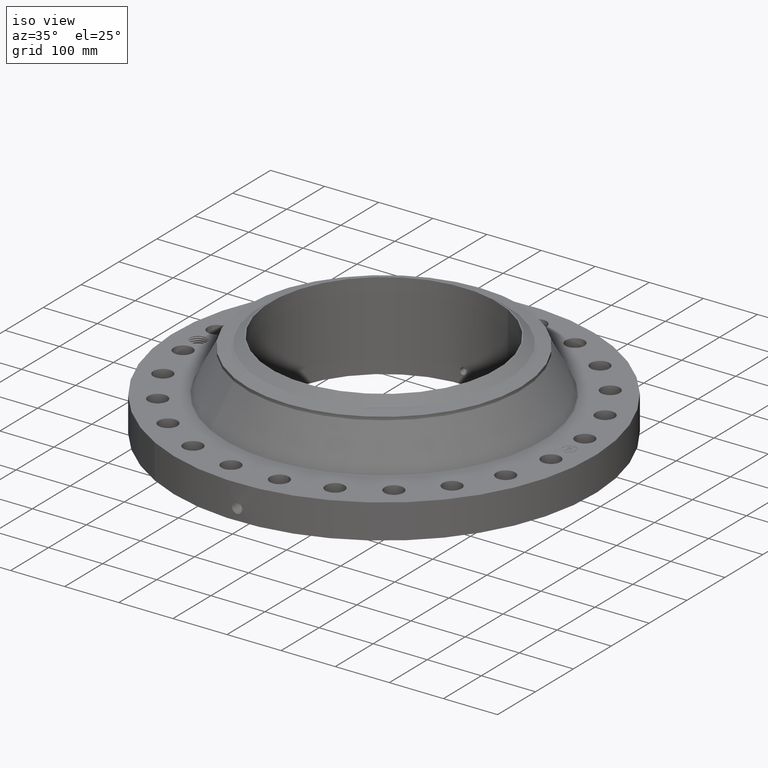
[diagram: clean part render]
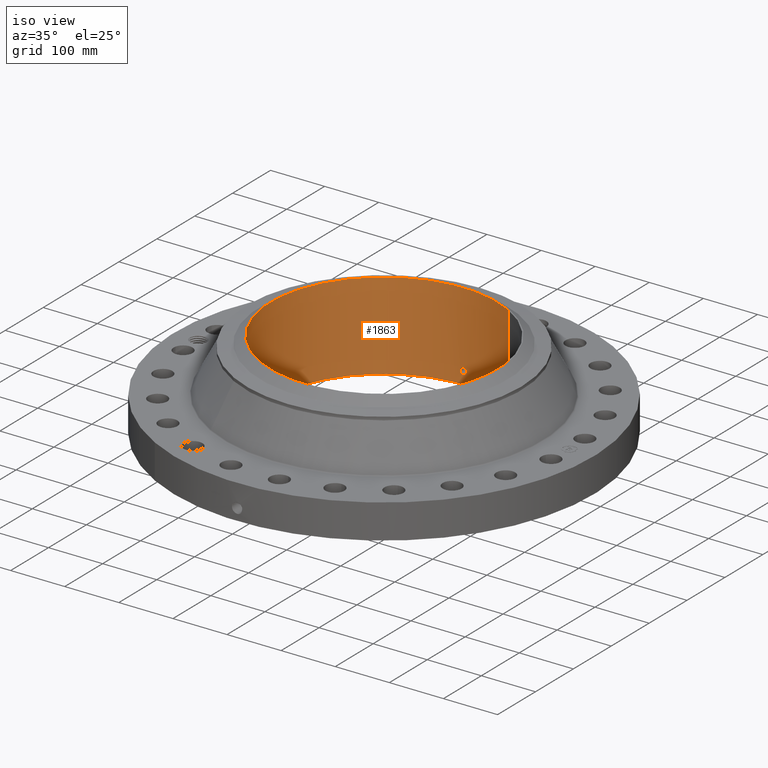
[diagram: same view with one face highlighted and labeled with its STEP entity id]
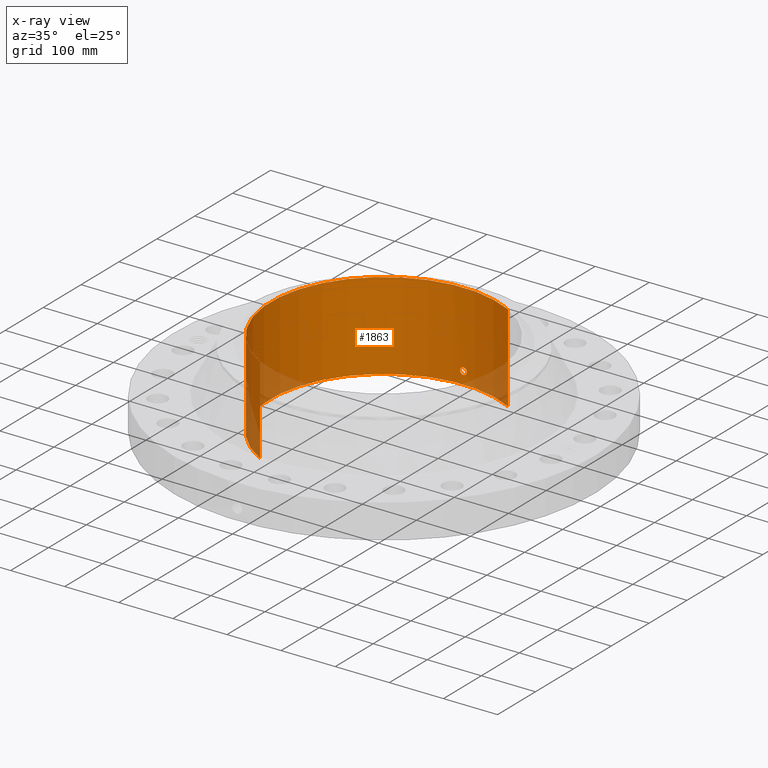
[diagram: x-ray of the same camera — body ghosted, the highlighted face saturated]
A machine part, iso view. The second image highlights one B-rep face of the part: STEP entity #1863.
The next image is the same camera in x-ray: the body ghosted, the highlighted face saturated — about 9% of this face is hidden behind the body in this view.
In plain terms, the highlighted cylindrical surface (partial cylindrical patch) has radius 209.55 mm, axis along (0, 0, -1).
Its self-contained STEP definition (entity closure, byte-faithful):
#267=AXIS2_PLACEMENT_3D('Circle Axis2P3D',#265,#266,$) ;
#1740=AXIS2_PLACEMENT_3D('Cylinder Axis2P3D',#1737,#1738,#1739) ;
#1812=AXIS2_PLACEMENT_3D('Circle Axis2P3D',#1810,#1811,$) ;
#260=CARTESIAN_POINT('Vertex',(3.9552606935,7.24005613562,0.0600000000002)) ;
#262=CARTESIAN_POINT('Vertex',(-3.9552606935,-7.24005613562,0.0600000000002)) ;
#265=CARTESIAN_POINT('Axis2P3D Location',(0.,0.,0.0600000000002)) ;
#1737=CARTESIAN_POINT('Axis2P3D Location',(0.,0.,3.25000000001)) ;
#1746=CARTESIAN_POINT('Vertex',(3.9552606935,7.24005613562,6.44000000003)) ;
#1748=CARTESIAN_POINT('Vertex',(-3.9552606935,-7.24005613562,6.44000000003)) ;
#1751=CARTESIAN_POINT('Line Origine',(3.9552606935,7.24005613562,3.25000000001)) ;
#1756=CARTESIAN_POINT('Line Origine',(-3.9552606935,-7.24005613562,3.25000000001)) ;
#1810=CARTESIAN_POINT('Axis2P3D Location',(0.,0.,6.44000000003)) ;
#1822=CARTESIAN_POINT('Control Point',(0.219395640473,8.24708224486,1.05985638466)) ;
#1823=CARTESIAN_POINT('Control Point',(0.194443177078,8.24774605074,1.10553156253)) ;
#1824=CARTESIAN_POINT('Control Point',(0.15760591993,8.24863158829,1.14471073957)) ;
#1825=CARTESIAN_POINT('Control Point',(0.111109683391,8.24949278377,1.17324238719)) ;
#1826=CARTESIAN_POINT('Control Point',(0.0336753629196,8.25017798873,1.19588229164)) ;
#1827=CARTESIAN_POINT('Control Point',(-0.0446689822905,8.24994122763,1.18805665938)) ;
#1828=CARTESIAN_POINT('Control Point',(-0.0702981493054,8.2497574269,1.18204441658)) ;
#1829=CARTESIAN_POINT('Control Point',(-0.143953549092,8.24894518048,1.15421372178)) ;
#1830=CARTESIAN_POINT('Control Point',(-0.203240642734,8.24761932208,1.09950149134)) ;
#1831=CARTESIAN_POINT('Control Point',(-0.23220672799,8.24674965403,1.05326405557)) ;
#1832=CARTESIAN_POINT('Control Point',(-0.255840010936,8.24603466121,0.975116646225)) ;
#1833=CARTESIAN_POINT('Control Point',(-0.24828366564,8.24626308003,0.895750360398)) ;
#1834=CARTESIAN_POINT('Control Point',(-0.242049868056,8.24645425832,0.869186453271)) ;
#1835=CARTESIAN_POINT('Control Point',(-0.232316018888,8.24673852637,0.8437942094)) ;
#1836=CARTESIAN_POINT('Control Point',(-0.219395640473,8.24708224486,0.820143615352)) ;
#1837=CARTESIAN_POINT('Vertex',(0.219395640473,8.24708224486,1.05985638466)) ;
#1839=CARTESIAN_POINT('Vertex',(-0.219395640473,8.24708224486,0.820143615352)) ;
#1843=CARTESIAN_POINT('Control Point',(-0.219395640473,8.24708224486,0.820143615352)) ;
#1844=CARTESIAN_POINT('Control Point',(-0.194443177091,8.24774605074,0.774468437503)) ;
#1845=CARTESIAN_POINT('Control Point',(-0.157605919966,8.24863158829,0.735289260477)) ;
#1846=CARTESIAN_POINT('Control Point',(-0.111109683342,8.24949278377,0.706757612804)) ;
#1847=CARTESIAN_POINT('Control Point',(-0.0336753628873,8.25017798873,0.684117708363)) ;
#1848=CARTESIAN_POINT('Control Point',(0.0446689823059,8.24994122763,0.691943340634)) ;
#1849=CARTESIAN_POINT('Control Point',(0.0702981492861,8.2497574269,0.697955583416)) ;
#1850=CARTESIAN_POINT('Control Point',(0.143953549041,8.24894518048,0.7257862782)) ;
#1851=CARTESIAN_POINT('Control Point',(0.203240642666,8.24761932208,0.780498508603)) ;
#1852=CARTESIAN_POINT('Control Point',(0.232206728015,8.24674965402,0.826735944527)) ;
#1853=CARTESIAN_POINT('Control Point',(0.255840010911,8.24603466121,0.904883353755)) ;
#1854=CARTESIAN_POINT('Control Point',(0.248283665654,8.24626308003,0.984249639468)) ;
#1855=CARTESIAN_POINT('Control Point',(0.242049868006,8.24645425832,1.01081354687)) ;
#1856=CARTESIAN_POINT('Control Point',(0.232316018855,8.24673852637,1.03620579067)) ;
#1857=CARTESIAN_POINT('Control Point',(0.219395640473,8.24708224486,1.05985638466)) ;
#266=DIRECTION('Axis2P3D Direction',(0.,0.,-0.0393700787402)) ;
#1738=DIRECTION('Axis2P3D Direction',(0.,0.,-0.0393700787402)) ;
#1739=DIRECTION('Axis2P3D XDirection',(-0.0188750212049,-0.0345504945626,0.)) ;
#1752=DIRECTION('Vector Direction',(0.,0.,-0.0393700787402)) ;
#1757=DIRECTION('Vector Direction',(0.,0.,-0.0393700787402)) ;
#1811=DIRECTION('Axis2P3D Direction',(0.,0.,-0.0393700787402)) ;
#1753=VECTOR('Line Direction',#1752,0.0393700787402) ;
#1758=VECTOR('Line Direction',#1757,0.0393700787402) ;
#1816=ORIENTED_EDGE('',*,*,#1814,.F.) ;
#1817=ORIENTED_EDGE('',*,*,#1760,.T.) ;
#1818=ORIENTED_EDGE('',*,*,#269,.T.) ;
#1819=ORIENTED_EDGE('',*,*,#1755,.F.) ;
#1860=ORIENTED_EDGE('',*,*,#1841,.F.) ;
#1861=ORIENTED_EDGE('',*,*,#1858,.F.) ;
#1862=FACE_BOUND('',#1859,.T.) ;
#1863=ADVANCED_FACE('PartBody',(#1820,#1862),#1741,.F.) ;
#1821=B_SPLINE_CURVE_WITH_KNOTS('',5,(#1822,#1823,#1824,#1825,#1826,#1827,#1828,#1829,#1830,#1831,#1832,#1833,#1834,#1835,#1836),.UNSPECIFIED.,.F.,.U.,(6,3,3,3,6),(0.,9.34859403398,14.0228130056,23.3728459808,28.2135452997),.UNSPECIFIED.) ;
#1842=B_SPLINE_CURVE_WITH_KNOTS('',5,(#1843,#1844,#1845,#1846,#1847,#1848,#1849,#1850,#1851,#1852,#1853,#1854,#1855,#1856,#1857),.UNSPECIFIED.,.F.,.U.,(6,3,3,3,6),(0.,9.3485940293,14.0228130025,23.3728459698,28.2135452762),.UNSPECIFIED.) ;
#268=CIRCLE('generated circle',#267,8.25000000003) ;
#1813=CIRCLE('generated circle',#1812,8.25000000003) ;
#1741=CYLINDRICAL_SURFACE('generated cylinder',#1740,8.25000000003) ;
#269=EDGE_CURVE('',#263,#261,#268,.T.) ;
#1755=EDGE_CURVE('',#1747,#261,#1754,.T.) ;
#1760=EDGE_CURVE('',#1749,#263,#1759,.T.) ;
#1814=EDGE_CURVE('',#1749,#1747,#1813,.T.) ;
#1841=EDGE_CURVE('',#1838,#1840,#1821,.T.) ;
#1858=EDGE_CURVE('',#1840,#1838,#1842,.T.) ;
#1815=EDGE_LOOP('',(#1816,#1817,#1818,#1819)) ;
#1859=EDGE_LOOP('',(#1860,#1861)) ;
#1820=FACE_OUTER_BOUND('',#1815,.T.) ;
#1754=LINE('Line',#1751,#1753) ;
#1759=LINE('Line',#1756,#1758) ;
#261=VERTEX_POINT('',#260) ;
#263=VERTEX_POINT('',#262) ;
#1747=VERTEX_POINT('',#1746) ;
#1749=VERTEX_POINT('',#1748) ;
#1838=VERTEX_POINT('',#1837) ;
#1840=VERTEX_POINT('',#1839) ;